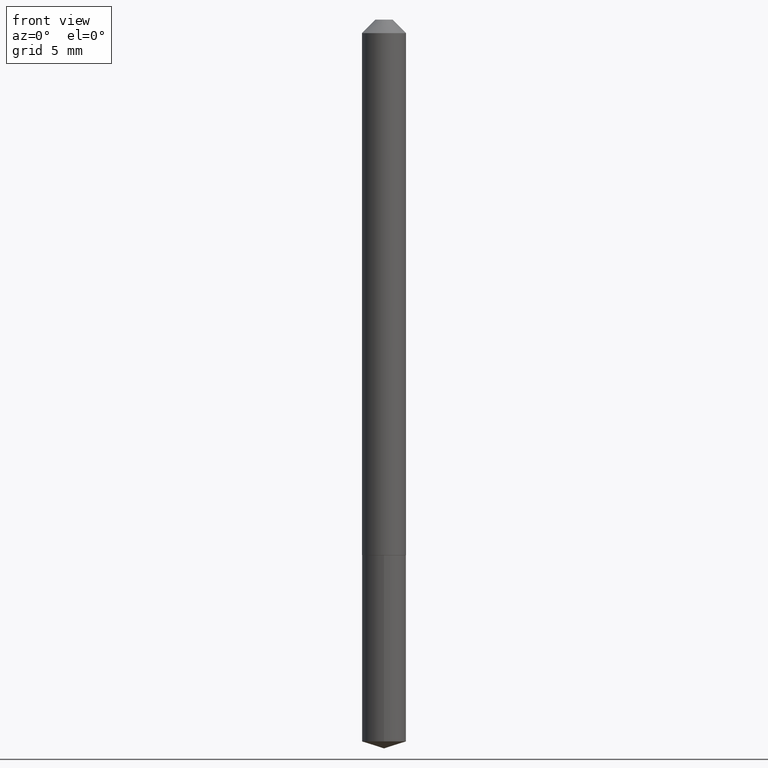
[diagram: clean part render]
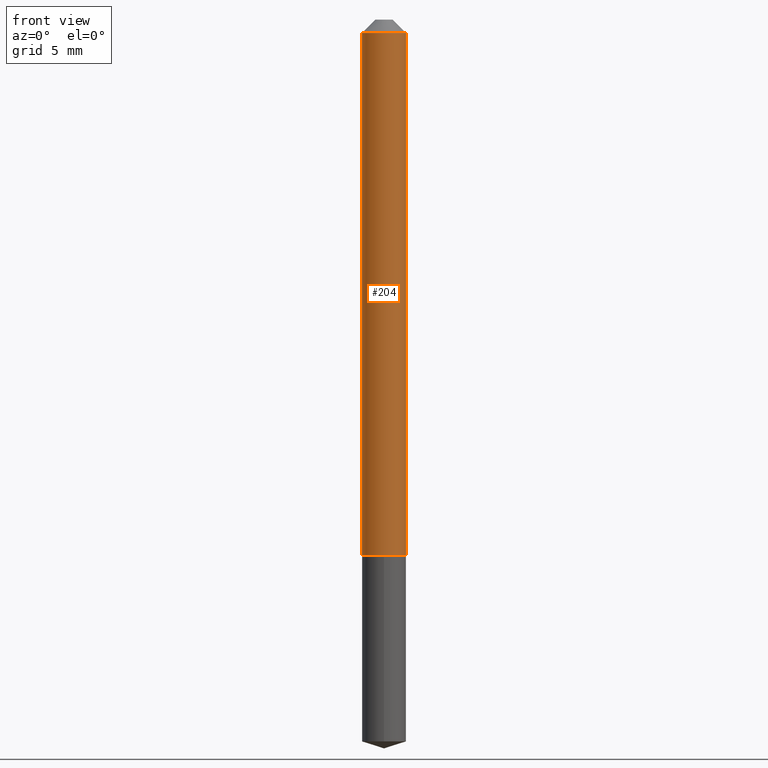
[diagram: same view with one face highlighted and labeled with its STEP entity id]
A machine part, front view. The second image highlights one B-rep face of the part: STEP entity #204.
In plain terms, the highlighted cylindrical surface (edge-blend (fillet) strip) has radius 1.3005 mm, axis along (-0, 0, 1).
Its self-contained STEP definition (entity closure, byte-faithful):
#32 = VERTEX_POINT ( 'NONE', #275 ) ;
#56 = CARTESIAN_POINT ( 'NONE',  ( 0.05120000000000016205, -4.699533882082873778E-15, -1.243600000000000039 ) ) ;
#58 = CARTESIAN_POINT ( 'NONE',  ( 3.041185007371835914E-29, -4.342006192985336437E-15, -1.243600000000000039 ) ) ;
#91 = AXIS2_PLACEMENT_3D ( 'NONE', #58, #386, #310 ) ;
#93 = DIRECTION ( 'NONE',  ( -2.445468806185136597E-29, 3.491481338843145583E-15, 1.000000000000000000 ) ) ;
#119 = DIRECTION ( 'NONE',  ( -2.445468806185136597E-29, 3.491481338843145583E-15, 1.000000000000000000 ) ) ;
#120 = EDGE_CURVE ( 'NONE', #388, #161, #147, .T. ) ;
#138 = EDGE_CURVE ( 'NONE', #388, #340, #258, .T. ) ;
#147 = LINE ( 'NONE', #156, #188 ) ;
#151 = LINE ( 'NONE', #384, #231 ) ;
#156 = CARTESIAN_POINT ( 'NONE',  ( -0.05120000000000009266, 3.637978807091719535E-16, -2.518494766210516482E-30 ) ) ;
#161 = VERTEX_POINT ( 'NONE', #335 ) ;
#165 = ORIENTED_EDGE ( 'NONE', *, *, #270, .F. ) ;
#175 = CIRCLE ( 'NONE', #377, 0.05120000000000001633 ) ;
#180 = FACE_OUTER_BOUND ( 'NONE', #324, .T. ) ;
#188 = VECTOR ( 'NONE', #294, 39.37007874015748143 ) ;
#203 = ORIENTED_EDGE ( 'NONE', *, *, #256, .T. ) ;
#204 = ADVANCED_FACE ( 'NONE', ( #180 ), #301, .T. ) ;
#206 = CARTESIAN_POINT ( 'NONE',  ( 7.642090019328602662E-31, -1.091087918388490267E-16, -0.03125000000000020817 ) ) ;
#215 = DIRECTION ( 'NONE',  ( 1.000000000000000000, -6.982962677686266711E-15, 4.876176775795936353E-29 ) ) ;
#231 = VECTOR ( 'NONE', #352, 39.37007874015748143 ) ;
#240 = DIRECTION ( 'NONE',  ( 1.000000000000000000, -6.982962677686267499E-15, 0.000000000000000000 ) ) ;
#256 = EDGE_CURVE ( 'NONE', #340, #32, #151, .T. ) ;
#258 = CIRCLE ( 'NONE', #91, 0.05120000000000016205 ) ;
#263 = CARTESIAN_POINT ( 'NONE',  ( -0.05120000000000016205, -3.978208312276164187E-15, -1.243600000000000039 ) ) ;
#270 = EDGE_CURVE ( 'NONE', #161, #32, #175, .T. ) ;
#275 = CARTESIAN_POINT ( 'NONE',  ( 0.05120000000000001633, -4.666364809363860477E-16, -0.03125000000000020817 ) ) ;
#294 = DIRECTION ( 'NONE',  ( -2.445468806185136877E-29, 3.491481338843145188E-15, 1.000000000000000000 ) ) ;
#301 = CYLINDRICAL_SURFACE ( 'NONE', #370, 0.05120000000000009266 ) ;
#310 = DIRECTION ( 'NONE',  ( 1.000000000000000000, -6.982962677686261977E-15, 0.000000000000000000 ) ) ;
#324 = EDGE_LOOP ( 'NONE', ( #332, #350, #203, #165 ) ) ;
#332 = ORIENTED_EDGE ( 'NONE', *, *, #120, .F. ) ;
#335 = CARTESIAN_POINT ( 'NONE',  ( -0.05120000000000001633, -1.861759611702918942E-15, -0.03125000000000020817 ) ) ;
#340 = VERTEX_POINT ( 'NONE', #56 ) ;
#350 = ORIENTED_EDGE ( 'NONE', *, *, #138, .T. ) ;
#352 = DIRECTION ( 'NONE',  ( -2.445468806185136877E-29, 3.491481338843145188E-15, 1.000000000000000000 ) ) ;
#363 = CARTESIAN_POINT ( 'NONE',  ( 0.000000000000000000, 0.000000000000000000, 0.000000000000000000 ) ) ;
#370 = AXIS2_PLACEMENT_3D ( 'NONE', #363, #93, #215 ) ;
#377 = AXIS2_PLACEMENT_3D ( 'NONE', #206, #119, #240 ) ;
#384 = CARTESIAN_POINT ( 'NONE',  ( 0.05120000000000009266, -3.575276890975374894E-16, 2.496602509207523938E-30 ) ) ;
#386 = DIRECTION ( 'NONE',  ( -2.445468806185136597E-29, 3.491481338843145583E-15, 1.000000000000000000 ) ) ;
#388 = VERTEX_POINT ( 'NONE', #263 ) ;